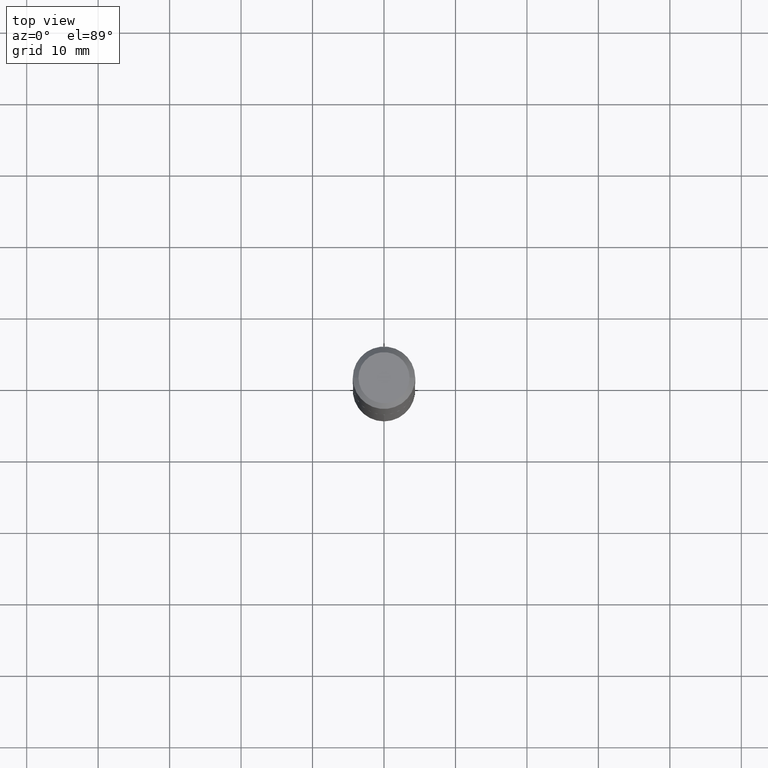
[diagram: clean part render]
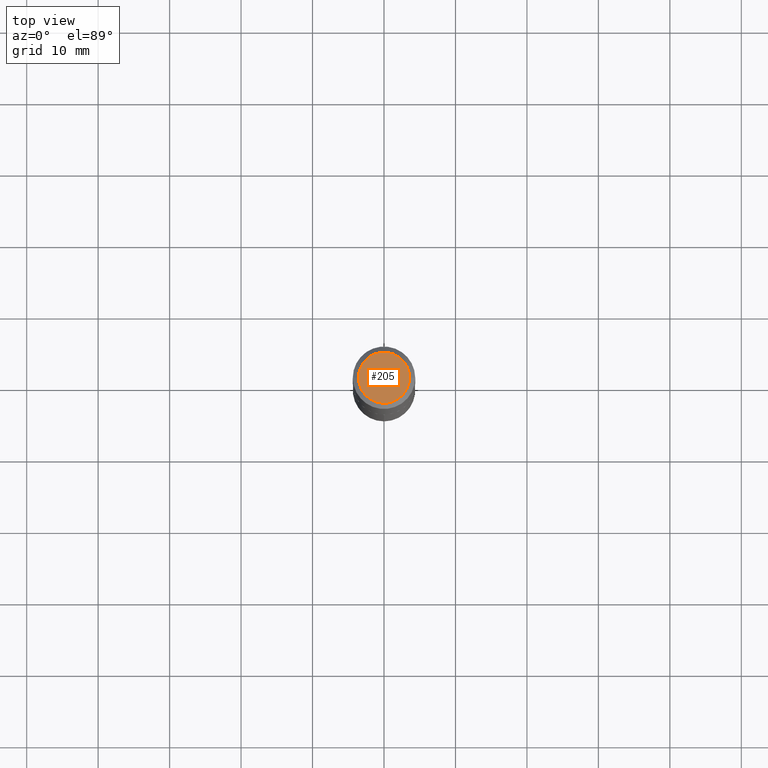
[diagram: same view with one face highlighted and labeled with its STEP entity id]
A machine part, top view. The second image highlights one B-rep face of the part: STEP entity #205.
In plain terms, the highlighted planar face has unit normal (0, -0, -1).
Its self-contained STEP definition (entity closure, byte-faithful):
#1 = CARTESIAN_POINT ( 'NONE',  ( -1.175472951769410740E-47, 1.678263842514562368E-33, 4.806738686653361095E-19 ) ) ;
#27 = VERTEX_POINT ( 'NONE', #364 ) ;
#32 = DIRECTION ( 'NONE',  ( 1.000000000000000000, -6.982962677686266711E-15, 4.876217917804670571E-29 ) ) ;
#45 = EDGE_CURVE ( 'NONE', #27, #292, #222, .T. ) ;
#98 = CARTESIAN_POINT ( 'NONE',  ( 0.1406499999999999695, -1.126678720521170652E-15, 9.613477373380456417E-19 ) ) ;
#99 = DIRECTION ( 'NONE',  ( -2.445468806185136597E-29, 3.491481338843145583E-15, 1.000000000000000000 ) ) ;
#116 = ORIENTED_EDGE ( 'NONE', *, *, #45, .T. ) ;
#156 = DIRECTION ( 'NONE',  ( 2.438088387897960049E-29, -3.491481338843145188E-15, -1.000000000000000000 ) ) ;
#182 = CARTESIAN_POINT ( 'NONE',  ( -2.350945903538821480E-47, 3.356527685029124736E-33, 9.613477373306722189E-19 ) ) ;
#203 = DIRECTION ( 'NONE',  ( 1.000000000000000000, -6.982962677686266711E-15, 4.876217917804670571E-29 ) ) ;
#205 = ADVANCED_FACE ( 'NONE', ( #340 ), #308, .F. ) ;
#211 = DIRECTION ( 'NONE',  ( -2.445468806185136597E-29, 3.491481338843145583E-15, 1.000000000000000000 ) ) ;
#222 = CIRCLE ( 'NONE', #288, 0.1406499999999999695 ) ;
#243 = CIRCLE ( 'NONE', #347, 0.1406499999999999695 ) ;
#249 = DIRECTION ( 'NONE',  ( -1.000000000000000000, 6.982962677686265922E-15, -4.876176775795935793E-29 ) ) ;
#288 = AXIS2_PLACEMENT_3D ( 'NONE', #385, #211, #203 ) ;
#292 = VERTEX_POINT ( 'NONE', #98 ) ;
#295 = AXIS2_PLACEMENT_3D ( 'NONE', #1, #156, #249 ) ;
#308 = PLANE ( 'NONE',  #295 ) ;
#340 = FACE_OUTER_BOUND ( 'NONE', #386, .T. ) ;
#345 = EDGE_CURVE ( 'NONE', #292, #27, #243, .T. ) ;
#347 = AXIS2_PLACEMENT_3D ( 'NONE', #182, #99, #32 ) ;
#355 = ORIENTED_EDGE ( 'NONE', *, *, #345, .T. ) ;
#364 = CARTESIAN_POINT ( 'NONE',  ( -0.1406499999999999695, 1.036708096535996774E-15, 9.613477373236131079E-19 ) ) ;
#385 = CARTESIAN_POINT ( 'NONE',  ( -2.350945903538821480E-47, 3.356527685029124736E-33, 9.613477373306722189E-19 ) ) ;
#386 = EDGE_LOOP ( 'NONE', ( #116, #355 ) ) ;